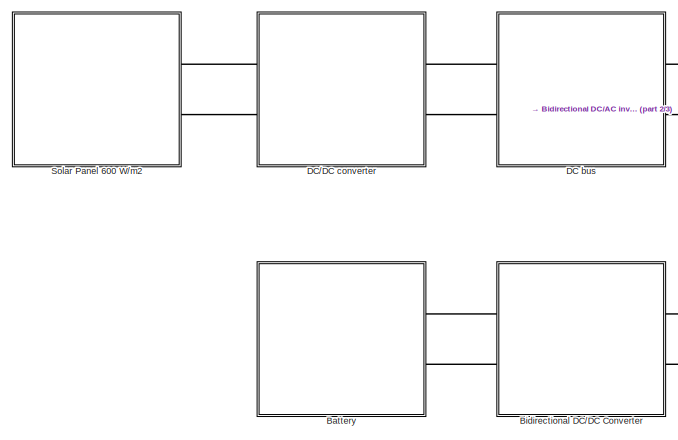
[diagram: root canvas - part 1/3, middle left region]
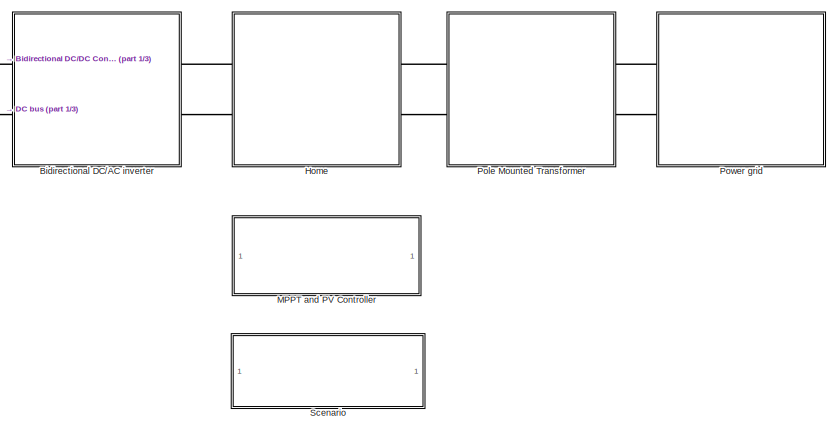
[diagram: root canvas - part 2/3, middle right region]
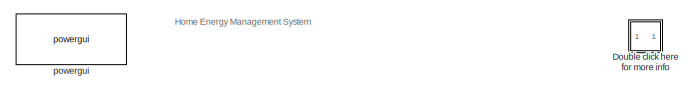
[diagram: root canvas - part 3/3, bottom center region]
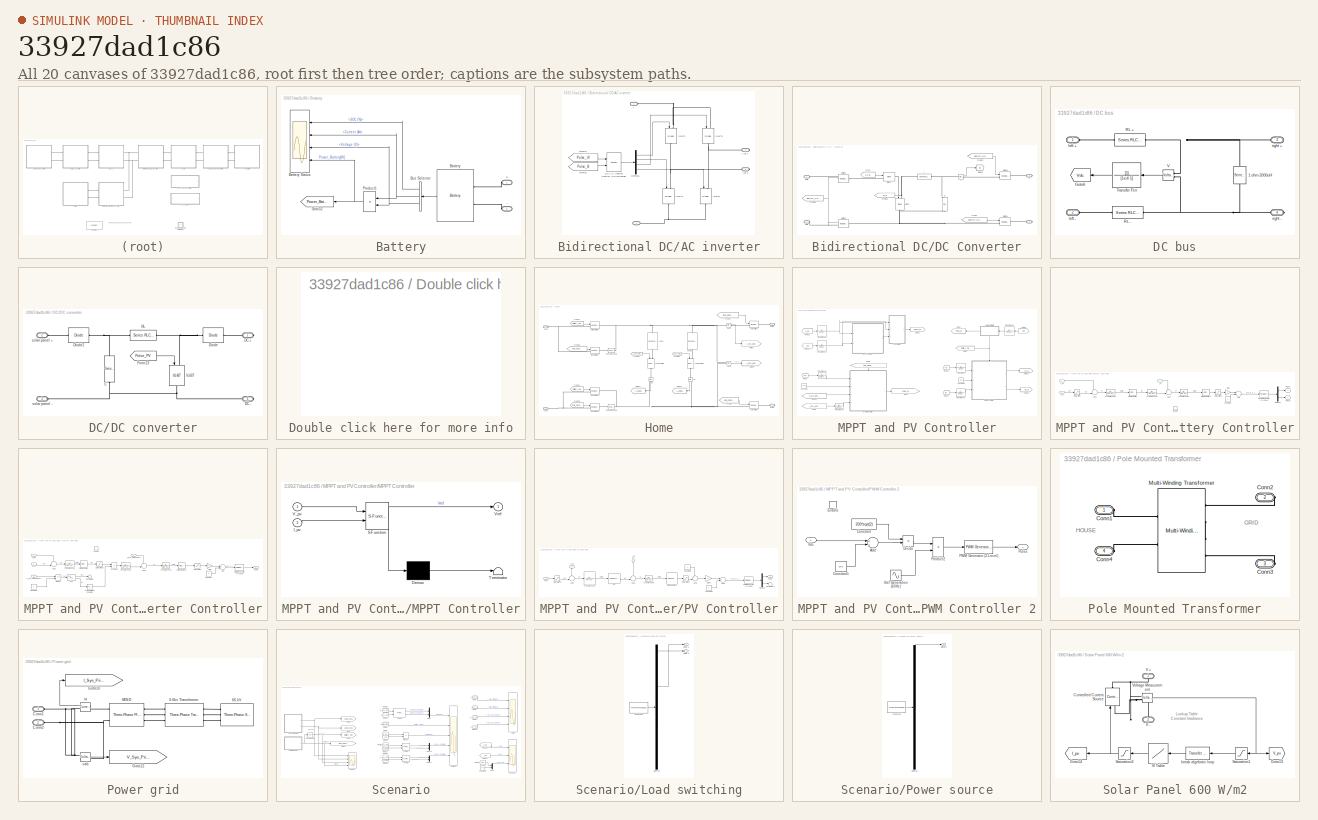
[diagram: thumbnail index - all 20 canvases of the model, root first then tree order]
MODEL slx_33927dad1c86
KIND model
CONFIG AbsTol = auto
CONFIG EnableMultiTasking = on
CONFIG FixedStep = auto
CONFIG MaxStep = auto
CONFIG MinStep = auto
CONFIG PreLoadFcn = % Data of Solar Panel\n%5000[W]/130[W]\n% Total power generated by solar panel reaches 5[KW].\n% each solar panel generates power 130[kW].   \nV = [0    40 80 120 160 180 200 217 240 260 280];\nI = 5000/130*[0.68 0.675 0.67 0.665 0.660 0.655 0.640 0.6 0.48 0.28 0];\n\n%subplot(211);plot(V,I);xlabel('Voltage[V]');ylabel('Current[a]')\n%subplot(212);plot(V.*I);title('Power[W]')\n\n% Sample Time[s]\nTs =5e-6;\n\n...<+606ch>
CONFIG RelTol = 1e-3
CONFIG SampleTimeConstraint = Unconstrained
CONFIG Solver = ode23tb
CONFIG SolverName = ode23tb
CONFIG StartTime = 0.0
CONFIG StopTime = 6
BLOCK [SubSystem] Battery
  Ports = [0, 0, 0, 0, 0, 2]
  RequestExecContextInheritance = off
  Variant = off
BLOCK [PMIOPort] Battery/+
  Port = 1
  Side = Left
BLOCK [PMIOPort] Battery/-
  Port = 2
  Side = Left
BLOCK [Reference] Battery/Battery  REF=electricdrivelib/Extra Sources/Battery
  Ports = [0, 1, 0, 0, 0, 2]
  SourceBlock = electricdrivelib/Extra Sources/Battery
  SourceProductBaseCode = PS
  SourceProductName = Simscape Power Systems
  SourceType = Battery
BLOCK [Scope] Battery/Battery Status
  NumInputPorts = 4
  Ports = [4]
  ScopeSpecificationString = Simulink.scopes.TimeScopeBlockCfg('CurrentConfiguration', extmgr.ConfigurationSet(extmgr.Configuration('Core','General UI',true),extmgr.Configuration('Core','Source UI',true),extmgr.Configuration('Sources','WiredSimulink',true,'DataLoggingVariableName','ScopeData4','DataLoggingSaveFormat','Array','DataLoggingDecimation','1'),extmgr.Configuration('Visuals','Time Domain',true,'SerializedDisplays',{s...<+3470ch>
BLOCK [BusSelector] Battery/Bus Selector
  OutputAsBus = off
  OutputSignals = SOC (%),Current (A),Voltage (V)
  Ports = [1, 3]
BLOCK [Goto] Battery/Goto32
  GotoTag = Power_Battery
  TagVisibility = global
BLOCK [Product] Battery/Product1
  InputSameDT = off
  OutDataTypeStr = Inherit: Inherit via internal rule
  Ports = [2, 1]
  SaturateOnIntegerOverflow = off
BLOCK [SubSystem] Bidirectional DC//AC inverter
  Ports = [0, 0, 0, 0, 0, 2, 2]
  RequestExecContextInheritance = off
  Variant = off
BLOCK [PMIOPort] Bidirectional DC//AC inverter/+
  Port = 1
  Side = Left
BLOCK [PMIOPort] Bidirectional DC//AC inverter/-
  Port = 4
  Side = Left
BLOCK [PMIOPort] Bidirectional DC//AC inverter/Aux 1
  Port = 2
  Side = Right
BLOCK [PMIOPort] Bidirectional DC//AC inverter/Aux 2
  Port = 3
  Side = Right
BLOCK [Merge] Bidirectional DC//AC inverter/DC//AC Inverter Controll Pullse Merge
  Ports = [2, 1]
BLOCK [Demux] Bidirectional DC//AC inverter/Demux1
  DisplayOption = bar
  Ports = [1, 4]
BLOCK [From] Bidirectional DC//AC inverter/From12
  GotoTag = Pulse_UI
  TagVisibility = global
BLOCK [From] Bidirectional DC//AC inverter/From15
  GotoTag = Pulse_B
  TagVisibility = global
BLOCK [Reference] Bidirectional DC//AC inverter/IGBT1  REF=powerlib/Power
Electronics/IGBT//Diode
  Ports = [1, 0, 0, 0, 0, 1, 1]
  SourceBlock = powerlib/Power\nElectronics/IGBT//Diode
  SourceProductBaseCode = PS
  SourceProductName = Simscape Power Systems
  SourceType = IGBT/Diode
BLOCK [Reference] Bidirectional DC//AC inverter/IGBT2  REF=powerlib/Power
Electronics/IGBT//Diode
  Ports = [1, 0, 0, 0, 0, 1, 1]
  SourceBlock = powerlib/Power\nElectronics/IGBT//Diode
  SourceProductBaseCode = PS
  SourceProductName = Simscape Power Systems
  SourceType = IGBT/Diode
BLOCK [Reference] Bidirectional DC//AC inverter/IGBT3  REF=powerlib/Power
Electronics/IGBT//Diode
  Ports = [1, 0, 0, 0, 0, 1, 1]
  SourceBlock = powerlib/Power\nElectronics/IGBT//Diode
  SourceProductBaseCode = PS
  SourceProductName = Simscape Power Systems
  SourceType = IGBT/Diode
BLOCK [Reference] Bidirectional DC//AC inverter/IGBT4  REF=powerlib/Power
Electronics/IGBT//Diode
  Ports = [1, 0, 0, 0, 0, 1, 1]
  SourceBlock = powerlib/Power\nElectronics/IGBT//Diode
  SourceProductBaseCode = PS
  SourceProductName = Simscape Power Systems
  SourceType = IGBT/Diode
BLOCK [SubSystem] Bidirectional DC//DC Converter
  Ports = [0, 0, 0, 0, 0, 2, 2]
  RequestExecContextInheritance = off
  Variant = off
BLOCK [PMIOPort] Bidirectional DC//DC Converter/+
  Port = 3
  Side = Right
BLOCK [PMIOPort] Bidirectional DC//DC Converter/-
  Port = 4
  Side = Right
BLOCK [PMIOPort] Bidirectional DC//DC Converter/Batt +
  Port = 1
  Side = Left
BLOCK [PMIOPort] Bidirectional DC//DC Converter/Batt -
  Port = 2
  Side = Left
BLOCK [Reference] Bidirectional DC//DC Converter/C  REF=powerlib/Elements/Series RLC Branch
  Ports = [0, 0, 0, 0, 0, 1, 1]
  SourceBlock = powerlib/Elements/Series RLC Branch
  SourceProductBaseCode = PS
  SourceProductName = Simscape Power Systems
  SourceType = Series RLC Branch
BLOCK [From] Bidirectional DC//DC Converter/From
  GotoTag = G1_B
  TagVisibility = global
BLOCK [From] Bidirectional DC//DC Converter/From1
  GotoTag = Battery_ON
  TagVisibility = global
BLOCK [From] Bidirectional DC//DC Converter/From20
  GotoTag = Battery_ON
  TagVisibility = global
BLOCK [From] Bidirectional DC//DC Converter/From32
  GotoTag = G2_B
  TagVisibility = global
BLOCK [From] Bidirectional DC//DC Converter/From37
  GotoTag = Battery_ON
  TagVisibility = global
BLOCK [Goto] Bidirectional DC//DC Converter/Goto18
  GotoTag = Ibt
  TagVisibility = global
BLOCK [Reference] Bidirectional DC//DC Converter/IGBT1  REF=powerlib/Power
Electronics/IGBT//Diode
  Ports = [1, 0, 0, 0, 0, 1, 1]
  SourceBlock = powerlib/Power\nElectronics/IGBT//Diode
  SourceProductBaseCode = PS
  SourceProductName = Simscape Power Systems
  SourceType = IGBT/Diode
BLOCK [Reference] Bidirectional DC//DC Converter/IGBT2  REF=powerlib/Power
Electronics/IGBT//Diode
  Ports = [1, 0, 0, 0, 0, 1, 1]
  SourceBlock = powerlib/Power\nElectronics/IGBT//Diode
  SourceProductBaseCode = PS
  SourceProductName = Simscape Power Systems
  SourceType = IGBT/Diode
BLOCK [Reference] Bidirectional DC//DC Converter/L  REF=powerlib/Elements/Series RLC Branch
  Ports = [0, 0, 0, 0, 0, 1, 1]
  SourceBlock = powerlib/Elements/Series RLC Branch
  SourceProductBaseCode = PS
  SourceProductName = Simscape Power Systems
  SourceType = Series RLC Branch
BLOCK [Reference] Bidirectional DC//DC Converter/Switch1  REF=powerlib/Power
Electronics/Ideal Switch
  Ports = [1, 0, 0, 0, 0, 1, 1]
  SourceBlock = powerlib/Power\nElectronics/Ideal Switch
  SourceProductBaseCode = PS
  SourceProductName = Simscape Power Systems
  SourceType = Ideal Switch
BLOCK [Reference] Bidirectional DC//DC Converter/Switch2  REF=powerlib/Power
Electronics/Ideal Switch
  Ports = [1, 0, 0, 0, 0, 1, 1]
  SourceBlock = powerlib/Power\nElectronics/Ideal Switch
  SourceProductBaseCode = PS
  SourceProductName = Simscape Power Systems
  SourceType = Ideal Switch
BLOCK [Reference] Bidirectional DC//DC Converter/Switch3  REF=powerlib/Power
Electronics/Ideal Switch
  Ports = [1, 0, 0, 0, 0, 1, 1]
  SourceBlock = powerlib/Power\nElectronics/Ideal Switch
  SourceProductBaseCode = PS
  SourceProductName = Simscape Power Systems
  SourceType = Ideal Switch
BLOCK [Reference] Bidirectional DC//DC Converter/Switch4  REF=powerlib/Power
Electronics/Ideal Switch
  Ports = [1, 0, 0, 0, 0, 1, 1]
  SourceBlock = powerlib/Power\nElectronics/Ideal Switch
  SourceProductBaseCode = PS
  SourceProductName = Simscape Power Systems
  SourceType = Ideal Switch
BLOCK [Reference] Bidirectional DC//DC Converter/i  REF=powerlib/Measurements/Current Measurement
  Ports = [0, 1, 0, 0, 0, 1, 1]
  SourceBlock = powerlib/Measurements/Current Measurement
  SourceProductBaseCode = PS
  SourceProductName = Simscape Power Systems
  SourceType = Current Measurement
BLOCK [SubSystem] DC bus
  Ports = [0, 0, 0, 0, 0, 2, 2]
  RequestExecContextInheritance = off
  Variant = off
BLOCK [Reference] DC bus/1 ohm 2000uH  REF=powerlib/Elements/Series RLC Branch
  AttributesFormatString = \n
  Ports = [0, 0, 0, 0, 0, 1, 1]
  SourceBlock = powerlib/Elements/Series RLC Branch
  SourceProductBaseCode = PS
  SourceProductName = Simscape Power Systems
  SourceType = Series RLC Branch
BLOCK [Goto] DC bus/Goto6
  GotoTag = Vdc
  TagVisibility = global
BLOCK [Reference] DC bus/RL +  REF=powerlib/Elements/Series RLC Branch
  Ports = [0, 0, 0, 0, 0, 1, 1]
  SourceBlock = powerlib/Elements/Series RLC Branch
  SourceProductBaseCode = PS
  SourceProductName = Simscape Power Systems
  SourceType = Series RLC Branch
BLOCK [Reference] DC bus/RL -  REF=powerlib/Elements/Series RLC Branch
  Ports = [0, 0, 0, 0, 0, 1, 1]
  SourceBlock = powerlib/Elements/Series RLC Branch
  SourceProductBaseCode = PS
  SourceProductName = Simscape Power Systems
  SourceType = Series RLC Branch
BLOCK [TransferFcn] DC bus/Transfer Fcn
  Denominator = [1e-4 1]
BLOCK [Reference] DC bus/V  REF=powerlib/Measurements/Voltage Measurement
  Ports = [0, 1, 0, 0, 0, 2]
  SourceBlock = powerlib/Measurements/Voltage Measurement
  SourceProductBaseCode = PS
  SourceProductName = Simscape Power Systems
  SourceType = Voltage Measurement
BLOCK [PMIOPort] DC bus/left +
  Port = 1
  Side = Left
BLOCK [PMIOPort] DC bus/left -
  Port = 2
  Side = Left
BLOCK [PMIOPort] DC bus/right +
  Port = 3
  Side = Right
BLOCK [PMIOPort] DC bus/right -
  Port = 4
  Side = Right
BLOCK [SubSystem] DC//DC converter
  Ports = [0, 0, 0, 0, 0, 2, 2]
  RequestExecContextInheritance = off
  Variant = off
BLOCK [Reference] DC//DC converter/C  REF=powerlib/Elements/Series RLC Branch
  Ports = [0, 0, 0, 0, 0, 1, 1]
  SourceBlock = powerlib/Elements/Series RLC Branch
  SourceProductBaseCode = PS
  SourceProductName = Simscape Power Systems
  SourceType = Series RLC Branch
BLOCK [PMIOPort] DC//DC converter/DC +
  Port = 1
  Side = Right
BLOCK [PMIOPort] DC//DC converter/DC -
  Port = 4
  Side = Right
BLOCK [Reference] DC//DC converter/Diode  REF=powerlib/Power
Electronics/Diode
  Ports = [0, 0, 0, 0, 0, 1, 1]
  SourceBlock = powerlib/Power\nElectronics/Diode
  SourceProductBaseCode = PS
  SourceProductName = Simscape Power Systems
  SourceType = Diode
BLOCK [Reference] DC//DC converter/Diode2  REF=powerlib/Power
Electronics/Diode
  Ports = [0, 0, 0, 0, 0, 1, 1]
  SourceBlock = powerlib/Power\nElectronics/Diode
  SourceProductBaseCode = PS
  SourceProductName = Simscape Power Systems
  SourceType = Diode
BLOCK [From] DC//DC converter/From13
  GotoTag = Pulse_PV
  TagVisibility = global
BLOCK [Reference] DC//DC converter/IGBT  REF=powerlib/Power
Electronics/IGBT
  Ports = [1, 0, 0, 0, 0, 1, 1]
  SourceBlock = powerlib/Power\nElectronics/IGBT
  SourceProductBaseCode = PS
  SourceProductName = Simscape Power Systems
  SourceType = IGBT
BLOCK [Reference] DC//DC converter/RL  REF=powerlib/Elements/Series RLC Branch
  Ports = [0, 0, 0, 0, 0, 1, 1]
  SourceBlock = powerlib/Elements/Series RLC Branch
  SourceProductBaseCode = PS
  SourceProductName = Simscape Power Systems
  SourceType = Series RLC Branch
BLOCK [PMIOPort] DC//DC converter/solar panel +
  Port = 2
  Side = Left
BLOCK [PMIOPort] DC//DC converter/solar panel -
  Port = 3
  Side = Left
BLOCK [SubSystem] Double click here for more info
  OpenFcn = showdemo(bdroot(gcb))
  Ports = []
  RequestExecContextInheritance = off
  Variant = off
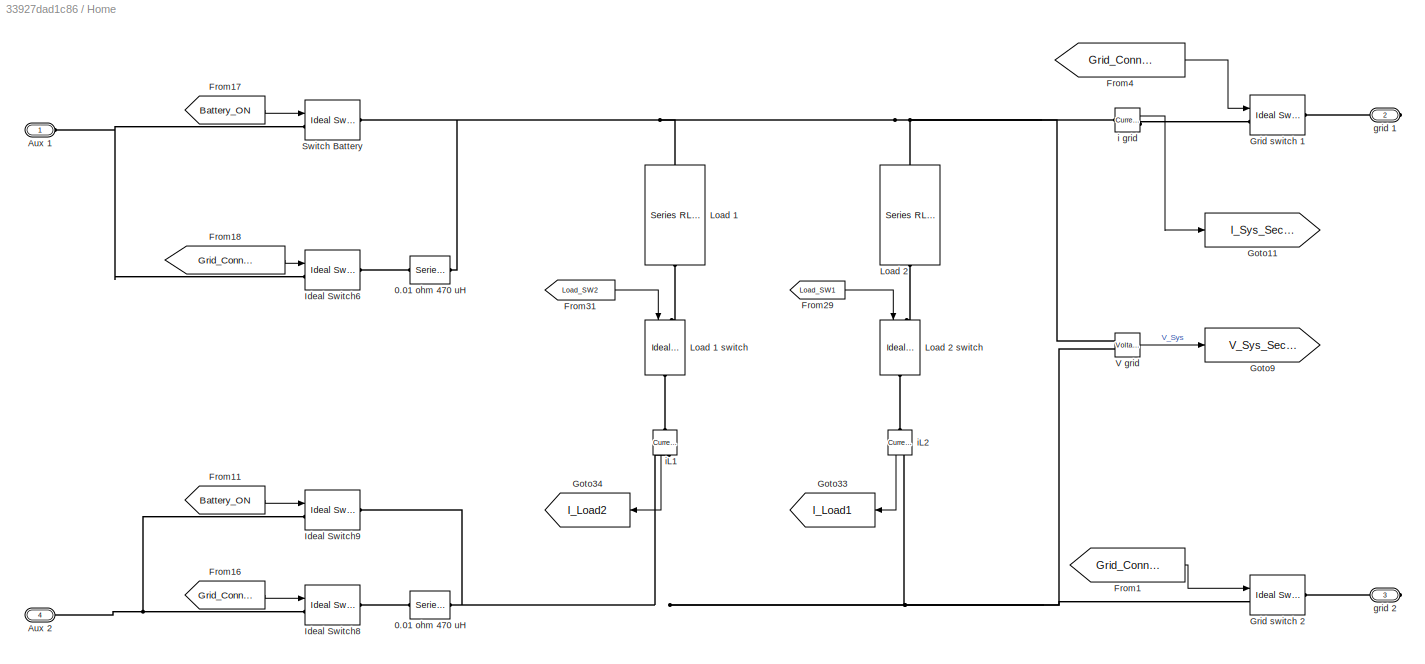
BLOCK [SubSystem] Home
  Ports = [0, 0, 0, 0, 0, 2, 2]
  RequestExecContextInheritance = off
  Variant = off
BLOCK [Reference] Home/0.01 ohm 470 uH  REF=powerlib/Elements/Series RLC Branch
  AttributesFormatString = \n
  Ports = [0, 0, 0, 0, 0, 1, 1]
  SourceBlock = powerlib/Elements/Series RLC Branch
  SourceProductBaseCode = PS
  SourceProductName = Simscape Power Systems
  SourceType = Series RLC Branch
BLOCK [Reference] Home/0.01 ohm 470 uH   REF=powerlib/Elements/Series RLC Branch
  AttributesFormatString = \n
  Ports = [0, 0, 0, 0, 0, 1, 1]
  SourceBlock = powerlib/Elements/Series RLC Branch
  SourceProductBaseCode = PS
  SourceProductName = Simscape Power Systems
  SourceType = Series RLC Branch
BLOCK [PMIOPort] Home/Aux 1
  Port = 1
  Side = Left
BLOCK [PMIOPort] Home/Aux 2
  Port = 4
  Side = Left
BLOCK [From] Home/From1
  GotoTag = Grid_Connection_ON
  TagVisibility = global
BLOCK [From] Home/From11
  GotoTag = Battery_ON
  TagVisibility = global
BLOCK [From] Home/From16
  GotoTag = Grid_Connection_ON
  TagVisibility = global
BLOCK [From] Home/From17
  GotoTag = Battery_ON
  TagVisibility = global
BLOCK [From] Home/From18
  GotoTag = Grid_Connection_ON
  TagVisibility = global
BLOCK [From] Home/From29
  CloseFcn = tagdialog Close
  GotoTag = Load_SW1
  TagVisibility = global
BLOCK [From] Home/From31
  CloseFcn = tagdialog Close
  GotoTag = Load_SW2
  TagVisibility = global
BLOCK [From] Home/From4
  GotoTag = Grid_Connection_ON
  TagVisibility = global
BLOCK [Goto] Home/Goto11
  GotoTag = I_Sys_Secondary
  TagVisibility = global
BLOCK [Goto] Home/Goto33
  GotoTag = I_Load1
  TagVisibility = global
BLOCK [Goto] Home/Goto34
  GotoTag = I_Load2
  TagVisibility = global
BLOCK [Goto] Home/Goto9
  GotoTag = V_Sys_Secondary
  TagVisibility = global
BLOCK [Reference] Home/Grid switch 1  REF=powerlib/Power
Electronics/Ideal Switch
  Ports = [1, 0, 0, 0, 0, 1, 1]
  SourceBlock = powerlib/Power\nElectronics/Ideal Switch
  SourceProductBaseCode = PS
  SourceProductName = Simscape Power Systems
  SourceType = Ideal Switch
BLOCK [Reference] Home/Grid switch 2  REF=powerlib/Power
Electronics/Ideal Switch
  Ports = [1, 0, 0, 0, 0, 1, 1]
  SourceBlock = powerlib/Power\nElectronics/Ideal Switch
  SourceProductBaseCode = PS
  SourceProductName = Simscape Power Systems
  SourceType = Ideal Switch
BLOCK [Reference] Home/Ideal Switch6  REF=powerlib/Power
Electronics/Ideal Switch
  Ports = [1, 0, 0, 0, 0, 1, 1]
  SourceBlock = powerlib/Power\nElectronics/Ideal Switch
  SourceProductBaseCode = PS
  SourceProductName = Simscape Power Systems
  SourceType = Ideal Switch
BLOCK [Reference] Home/Ideal Switch8  REF=powerlib/Power
Electronics/Ideal Switch
  Ports = [1, 0, 0, 0, 0, 1, 1]
  SourceBlock = powerlib/Power\nElectronics/Ideal Switch
  SourceProductBaseCode = PS
  SourceProductName = Simscape Power Systems
  SourceType = Ideal Switch
BLOCK [Reference] Home/Ideal Switch9  REF=powerlib/Power
Electronics/Ideal Switch
  Ports = [1, 0, 0, 0, 0, 1, 1]
  SourceBlock = powerlib/Power\nElectronics/Ideal Switch
  SourceProductBaseCode = PS
  SourceProductName = Simscape Power Systems
  SourceType = Ideal Switch
BLOCK [Reference] Home/Load 1   REF=powerlib/Elements/Series RLC Load
  AttributesFormatString = \n
  Ports = [0, 0, 0, 0, 0, 1, 1]
  SourceBlock = powerlib/Elements/Series RLC Load
  SourceProductBaseCode = PS
  SourceProductName = Simscape Power Systems
  SourceType = Series RLC Load
BLOCK [Reference] Home/Load 1 switch  REF=powerlib/Power
Electronics/Ideal Switch
  Ports = [1, 0, 0, 0, 0, 1, 1]
  SourceBlock = powerlib/Power\nElectronics/Ideal Switch
  SourceProductBaseCode = PS
  SourceProductName = Simscape Power Systems
  SourceType = Ideal Switch
BLOCK [Reference] Home/Load 2  REF=powerlib/Elements/Series RLC Load
  AttributesFormatString = \n
  Ports = [0, 0, 0, 0, 0, 1, 1]
  SourceBlock = powerlib/Elements/Series RLC Load
  SourceProductBaseCode = PS
  SourceProductName = Simscape Power Systems
  SourceType = Series RLC Load
BLOCK [Reference] Home/Load 2 switch  REF=powerlib/Power
Electronics/Ideal Switch
  Ports = [1, 0, 0, 0, 0, 1, 1]
  SourceBlock = powerlib/Power\nElectronics/Ideal Switch
  SourceProductBaseCode = PS
  SourceProductName = Simscape Power Systems
  SourceType = Ideal Switch
BLOCK [Reference] Home/Switch Battery  REF=powerlib/Power
Electronics/Ideal Switch
  Ports = [1, 0, 0, 0, 0, 1, 1]
  SourceBlock = powerlib/Power\nElectronics/Ideal Switch
  SourceProductBaseCode = PS
  SourceProductName = Simscape Power Systems
  SourceType = Ideal Switch
BLOCK [Reference] Home/V grid  REF=powerlib/Measurements/Voltage Measurement
  Ports = [0, 1, 0, 0, 0, 2]
  SourceBlock = powerlib/Measurements/Voltage Measurement
  SourceProductBaseCode = PS
  SourceProductName = Simscape Power Systems
  SourceType = Voltage Measurement
BLOCK [PMIOPort] Home/grid 1
  Port = 2
  Side = Right
BLOCK [PMIOPort] Home/grid 2
  Port = 3
  Side = Right
BLOCK [Reference] Home/i grid  REF=powerlib/Measurements/Current Measurement
  Ports = [0, 1, 0, 0, 0, 1, 1]
  SourceBlock = powerlib/Measurements/Current Measurement
  SourceProductBaseCode = PS
  SourceProductName = Simscape Power Systems
  SourceType = Current Measurement
BLOCK [Reference] Home/iL1  REF=powerlib/Measurements/Current Measurement
  Ports = [0, 1, 0, 0, 0, 1, 1]
  SourceBlock = powerlib/Measurements/Current Measurement
  SourceProductBaseCode = PS
  SourceProductName = Simscape Power Systems
  SourceType = Current Measurement
BLOCK [Reference] Home/iL2  REF=powerlib/Measurements/Current Measurement
  Ports = [0, 1, 0, 0, 0, 1, 1]
  SourceBlock = powerlib/Measurements/Current Measurement
  SourceProductBaseCode = PS
  SourceProductName = Simscape Power Systems
  SourceType = Current Measurement
BLOCK [SubSystem] MPPT and PV Controller
  Ports = []
  RequestExecContextInheritance = off
  Variant = off
BLOCK [SubSystem] MPPT and PV Controller/Battery Controller
  Ports = [3, 2, 1]
  RequestExecContextInheritance = off
  Variant = off
BLOCK [Inport] MPPT and PV Controller/Battery Controller/370
  IconDisplay = Port number
  Port = 2
BLOCK [Sum] MPPT and PV Controller/Battery Controller/Add
  InputSameDT = off
  OutDataTypeStr = Inherit: Inherit via internal rule
  Ports = [2, 1]
  SaturateOnIntegerOverflow = off
BLOCK [Sum] MPPT and PV Controller/Battery Controller/Add1
  IconShape = round
  InputSameDT = off
  Inputs = +-|
  OutDataTypeStr = Inherit: Inherit via internal rule
  Ports = [2, 1]
  SaturateOnIntegerOverflow = off
BLOCK [Sum] MPPT and PV Controller/Battery Controller/Add2
  IconShape = round
  InputSameDT = off
  Inputs = +-|
  OutDataTypeStr = Inherit: Inherit via internal rule
  Ports = [2, 1]
  SaturateOnIntegerOverflow = off
BLOCK [Constant] MPPT and PV Controller/Battery Controller/Constant
  Value = -1
BLOCK [Demux] MPPT and PV Controller/Battery Controller/Demux5
  DisplayOption = bar
  Outputs = 2
  Ports = [1, 2]
BLOCK [EnablePort] MPPT and PV Controller/Battery Controller/Enable
  Ports = []
  StatesWhenEnabling = reset
BLOCK [Gain] MPPT and PV Controller/Battery Controller/Gain
  Gain = 2
  OutDataTypeStr = Inherit: Inherit via internal rule
  ParamDataTypeStr = Inherit: Inherit via internal rule
  SaturateOnIntegerOverflow = off
BLOCK [Inport] MPPT and PV Controller/Battery Controller/I_bt
  IconDisplay = Port number
  Port = 3
BLOCK [Reference] MPPT and PV Controller/Battery Controller/PID Controller  REF=simulink/Continuous/PID Controller
  Ports = [1, 1]
  SourceBlock = simulink/Continuous/PID Controller
  SourceProductBaseCode = SL
  SourceProductName = Simulink
  SourceType = PID 1dof
BLOCK [Reference] MPPT and PV Controller/Battery Controller/PID Controller1  REF=simulink/Continuous/PID Controller
  Ports = [1, 1]
  SourceBlock = simulink/Continuous/PID Controller
  SourceProductBaseCode = SL
  SourceProductName = Simulink
  SourceType = PID 1dof
BLOCK [Reference] MPPT and PV Controller/Battery Controller/PWM Generator (2-Level)  REF=powerlib_meascontrol/Pulse & Signal
Generators/PWM Generator
(2-Level)
  Ports = [1, 1]
  SourceBlock = powerlib_meascontrol/Pulse & Signal\nGenerators/PWM Generator\n(2-Level)
  SourceProductBaseCode = PS
  SourceProductName = Simscape Power Systems
  SourceType = PWM Generator (2-Level)
BLOCK [Outport] MPPT and PV Controller/Battery Controller/Pulse 1
  IconDisplay = Port number
  InitialOutput = 0
  OutputWhenDisabled = reset
BLOCK [Outport] MPPT and PV Controller/Battery Controller/Pulse 2
  IconDisplay = Port number
  InitialOutput = 0
  OutputWhenDisabled = reset
  Port = 2
BLOCK [Saturate] MPPT and PV Controller/Battery Controller/Saturation
  InputPortMap = u0
  LowerLimit = 0
  Ports = [1, 1]
  UpperLimit = 370
BLOCK [Saturate] MPPT and PV Controller/Battery Controller/Saturation1
  InputPortMap = u0
  LowerLimit = 0
  Ports = [1, 1]
  UpperLimit = 1
BLOCK [TransferFcn] MPPT and PV Controller/Battery Controller/Transfer Fcn1
  Denominator = [1e-4 1]
BLOCK [TransferFcn] MPPT and PV Controller/Battery Controller/Transfer Fcn2
  Denominator = [1e-4 1]
BLOCK [TransferFcn] MPPT and PV Controller/Battery Controller/Transfer Fcn3
  Denominator = [1e-4 1]
BLOCK [Inport] MPPT and PV Controller/Battery Controller/V_Dc
  IconDisplay = Port number
BLOCK [Constant] MPPT and PV Controller/Constant1
  Value = 370
BLOCK [Constant] MPPT and PV Controller/Constant3
  Value = 370
BLOCK [From] MPPT and PV Controller/From1
  GotoTag = I_Sys_Secondary
  TagVisibility = global
BLOCK [From] MPPT and PV Controller/From14
  GotoTag = V_Sys_Secondary
  TagVisibility = global
BLOCK [From] MPPT and PV Controller/From19
  GotoTag = I_pv
  TagVisibility = global
BLOCK [From] MPPT and PV Controller/From2
  GotoTag = Vdc
  TagVisibility = global
BLOCK [From] MPPT and PV Controller/From23
  GotoTag = V_pv
  TagVisibility = global
BLOCK [From] MPPT and PV Controller/From3
  GotoTag = Vdc
  TagVisibility = global
BLOCK [From] MPPT and PV Controller/From33
  GotoTag = Vdc
  TagVisibility = global
BLOCK [From] MPPT and PV Controller/From34
  GotoTag = Ibt
  TagVisibility = global
BLOCK [From] MPPT and PV Controller/From5
  GotoTag = Grid_Connection_ON
  TagVisibility = global
BLOCK [From] MPPT and PV Controller/From6
  GotoTag = Battery_ON
  TagVisibility = global
BLOCK [Goto] MPPT and PV Controller/Goto1
  GotoTag = Pulse_UI
  TagVisibility = global
BLOCK [Goto] MPPT and PV Controller/Goto17
  GotoTag = Pulse_PV
  TagVisibility = global
BLOCK [Goto] MPPT and PV Controller/Goto21
  GotoTag = G2_B
  TagVisibility = global
BLOCK [Goto] MPPT and PV Controller/Goto22
  GotoTag = G1_B
  TagVisibility = global
BLOCK [Goto] MPPT and PV Controller/Goto8
  GotoTag = Pulse_B
  TagVisibility = global
BLOCK [SubSystem] MPPT and PV Controller/Inverter Controller
  Ports = [4, 1, 1]
  RequestExecContextInheritance = off
  Variant = off
BLOCK [Inport] MPPT and PV Controller/Inverter Controller/370
  IconDisplay = Port number
  Port = 2
BLOCK [Sum] MPPT and PV Controller/Inverter Controller/Add
  InputSameDT = off
  OutDataTypeStr = Inherit: Inherit via internal rule
  Ports = [2, 1]
  SaturateOnIntegerOverflow = off
BLOCK [Sum] MPPT and PV Controller/Inverter Controller/Add1
  IconShape = round
  InputSameDT = off
  Inputs = +-|
  OutDataTypeStr = Inherit: Inherit via internal rule
  Ports = [2, 1]
  SaturateOnIntegerOverflow = off
BLOCK [Sum] MPPT and PV Controller/Inverter Controller/Add2
  IconShape = round
  InputSameDT = off
  Inputs = +-|
  OutDataTypeStr = Inherit: Inherit via internal rule
  Ports = [2, 1]
  SaturateOnIntegerOverflow = off
BLOCK [Constant] MPPT and PV Controller/Inverter Controller/Constant
  Value = -1
BLOCK [Constant] MPPT and PV Controller/Inverter Controller/Constant4
BLOCK [Product] MPPT and PV Controller/Inverter Controller/Divide1
  InputSameDT = off
  Inputs = */
  OutDataTypeStr = Inherit: Inherit via internal rule
  Ports = [2, 1]
  RndMeth = Floor
  SaturateOnIntegerOverflow = off
BLOCK [EnablePort] MPPT and PV Controller/Inverter Controller/Enable
  Ports = []
  StatesWhenEnabling = reset
BLOCK [Gain] MPPT and PV Controller/Inverter Controller/Gain
  Gain = 2
  OutDataTypeStr = Inherit: Inherit via internal rule
  ParamDataTypeStr = Inherit: Inherit via internal rule
  SaturateOnIntegerOverflow = off
BLOCK [Inport] MPPT and PV Controller/Inverter Controller/I_Sys_Secondary
  IconDisplay = Port number
  Port = 4
BLOCK [Reference] MPPT and PV Controller/Inverter Controller/PID Controller  REF=simulink/Continuous/PID Controller
  Ports = [1, 1]
  SourceBlock = simulink/Continuous/PID Controller
  SourceProductBaseCode = SL
  SourceProductName = Simulink
  SourceType = PID 1dof
BLOCK [Reference] MPPT and PV Controller/Inverter Controller/PID Controller1  REF=simulink/Continuous/PID Controller
  Ports = [1, 1]
  SourceBlock = simulink/Continuous/PID Controller
  SourceProductBaseCode = SL
  SourceProductName = Simulink
  SourceType = PID 1dof
BLOCK [Reference] MPPT and PV Controller/Inverter Controller/PLL  REF=powerlib_meascontrol/PLL/PLL
  Ports = [1, 2]
  SourceBlock = powerlib_meascontrol/PLL/PLL
  SourceProductBaseCode = PS
  SourceProductName = Simscape Power Systems
  SourceType = PLL
BLOCK [Reference] MPPT and PV Controller/Inverter Controller/PWM Generator (2-Level)  REF=powerlib_meascontrol/Pulse & Signal
Generators/PWM Generator
(2-Level)
  Ports = [1, 1]
  SourceBlock = powerlib_meascontrol/Pulse & Signal\nGenerators/PWM Generator\n(2-Level)
  SourceProductBaseCode = PS
  SourceProductName = Simscape Power Systems
  SourceType = PWM Generator (2-Level)
BLOCK [Product] MPPT and PV Controller/Inverter Controller/Product1
  InputSameDT = off
  OutDataTypeStr = Inherit: Inherit via internal rule
  Ports = [2, 1]
  SaturateOnIntegerOverflow = off
BLOCK [Outport] MPPT and PV Controller/Inverter Controller/Pulse
  IconDisplay = Port number
  InitialOutput = [0 0 0 0]
  OutputWhenDisabled = reset
BLOCK [Saturate] MPPT and PV Controller/Inverter Controller/Saturation1
  InputPortMap = u0
  LowerLimit = -1
  Ports = [1, 1]
  UpperLimit = 1
BLOCK [Saturate] MPPT and PV Controller/Inverter Controller/Saturation3
  InputPortMap = u0
  LowerLimit = -50
  Ports = [1, 1]
  UpperLimit = 50
BLOCK [Terminator] MPPT and PV Controller/Inverter Controller/Terminator
BLOCK [TransferFcn] MPPT and PV Controller/Inverter Controller/Transfer Fcn1
  Denominator = [1e-4 1]
BLOCK [TransferFcn] MPPT and PV Controller/Inverter Controller/Transfer Fcn2
  Denominator = [1e-4 1]
BLOCK [TransferFcn] MPPT and PV Controller/Inverter Controller/Transfer Fcn3
  Denominator = [1e-4 1]
BLOCK [Trigonometry] MPPT and PV Controller/Inverter Controller/Trigonometric Function
  Ports = [1, 1]
BLOCK [Inport] MPPT and PV Controller/Inverter Controller/V_Dc
  IconDisplay = Port number
BLOCK [Inport] MPPT and PV Controller/Inverter Controller/V_Sys_Secondary
  IconDisplay = Port number
  Port = 3
BLOCK [SubSystem] MPPT and PV Controller/MPPT Controller
  ErrorFcn = Stateflow.Translate.translate
  PermitHierarchicalResolution = ExplicitOnly
  Ports = [2, 1]
  RequestExecContextInheritance = off
  SFBlockType = Chart
  TreatAsAtomicUnit = on
  Variant = off
BLOCK [Demux] MPPT and PV Controller/MPPT Controller/ Demux 
  Outputs = 1
  Ports = [1, 1]
BLOCK [S-Function] MPPT and PV Controller/MPPT Controller/ SFunction 
  EnableBusSupport = off
  FunctionName = sf_sfun
  Parameters = dV
  PortCounts = [2 2]
  Ports = [2, 2]
  SFcnIsStateOwnerBlock = off
  SFunctionDeploymentMode = off
  Tag = Stateflow S-Function power_HEMS 1
BLOCK [Terminator] MPPT and PV Controller/MPPT Controller/ Terminator 
BLOCK [Inport] MPPT and PV Controller/MPPT Controller/I_pv
  IconDisplay = Port number
  Port = 2
BLOCK [Inport] MPPT and PV Controller/MPPT Controller/V_pv
  IconDisplay = Port number
BLOCK [Outport] MPPT and PV Controller/MPPT Controller/Vref
  IconDisplay = Port number
BLOCK [SubSystem] MPPT and PV Controller/PV Controller
  Ports = [3, 1]
  RequestExecContextInheritance = off
  Variant = off
BLOCK [Sum] MPPT and PV Controller/PV Controller/Add3
  InputSameDT = off
  OutDataTypeStr = Inherit: Inherit via internal rule
  Ports = [2, 1]
  SaturateOnIntegerOverflow = off
BLOCK [Sum] MPPT and PV Controller/PV Controller/Add4
  IconShape = round
  InputSameDT = off
  Inputs = +-|
  OutDataTypeStr = Inherit: Inherit via internal rule
  Ports = [2, 1]
  SaturateOnIntegerOverflow = off
BLOCK [Sum] MPPT and PV Controller/PV Controller/Add5
  IconShape = round
  InputSameDT = off
  Inputs = +-|
  OutDataTypeStr = Inherit: Inherit via internal rule
  Ports = [2, 1]
  SaturateOnIntegerOverflow = off
BLOCK [Sum] MPPT and PV Controller/PV Controller/Add6
  IconShape = round
  InputSameDT = off
  Inputs = +-|
  OutDataTypeStr = Inherit: Inherit via internal rule
  Ports = [2, 1]
  SaturateOnIntegerOverflow = off
BLOCK [Constant] MPPT and PV Controller/PV Controller/Constant3
  Value = -1
BLOCK [Constant] MPPT and PV Controller/PV Controller/Constant5
BLOCK [Demux] MPPT and PV Controller/PV Controller/Demux2
  DisplayOption = bar
  Outputs = 2
  Ports = [1, 2]
BLOCK [Gain] MPPT and PV Controller/PV Controller/Gain2
  Gain = 2
  OutDataTypeStr = Inherit: Inherit via internal rule
  ParamDataTypeStr = Inherit: Inherit via internal rule
  SaturateOnIntegerOverflow = off
BLOCK [Inport] MPPT and PV Controller/PV Controller/I_pv
  IconDisplay = Port number
  Port = 2
BLOCK [Reference] MPPT and PV Controller/PV Controller/PID  REF=simulink/Continuous/PID Controller
  Ports = [1, 1]
  SourceBlock = simulink/Continuous/PID Controller
  SourceProductBaseCode = SL
  SourceProductName = Simulink
  SourceType = PID 1dof
BLOCK [Reference] MPPT and PV Controller/PV Controller/PID Controller3  REF=simulink/Continuous/PID Controller
  Ports = [1, 1]
  SourceBlock = simulink/Continuous/PID Controller
  SourceProductBaseCode = SL
  SourceProductName = Simulink
  SourceType = PID 1dof
BLOCK [Reference] MPPT and PV Controller/PV Controller/PWM Generator (2-Level)  REF=powerlib_meascontrol/Pulse & Signal
Generators/PWM Generator
(2-Level)
  Ports = [1, 1]
  SourceBlock = powerlib_meascontrol/Pulse & Signal\nGenerators/PWM Generator\n(2-Level)
  SourceProductBaseCode = PS
  SourceProductName = Simscape Power Systems
  SourceType = PWM Generator (2-Level)
BLOCK [Outport] MPPT and PV Controller/PV Controller/Pulse
  IconDisplay = Port number
BLOCK [Saturate] MPPT and PV Controller/PV Controller/Saturation2
  InputPortMap = u0
  LowerLimit = 0
  Ports = [1, 1]
  UpperLimit = 280
BLOCK [Saturate] MPPT and PV Controller/PV Controller/Saturation3
  InputPortMap = u0
  LowerLimit = 0
  Ports = [1, 1]
  UpperLimit = 1
BLOCK [Terminator] MPPT and PV Controller/PV Controller/Terminator1
BLOCK [TransferFcn] MPPT and PV Controller/PV Controller/Transfer Fcn5
  Denominator = [1e-4 1]
BLOCK [TransferFcn] MPPT and PV Controller/PV Controller/Transfer Fcn6
  Denominator = [1e-4 1]
BLOCK [Inport] MPPT and PV Controller/PV Controller/V_pv
  IconDisplay = Port number
BLOCK [Inport] MPPT and PV Controller/PV Controller/Vref
  IconDisplay = Port number
  Port = 3
BLOCK [SubSystem] MPPT and PV Controller/PWM Controller 2
  Ports = [1, 1, 1]
  RequestExecContextInheritance = off
  Variant = off
BLOCK [Sum] MPPT and PV Controller/PWM Controller 2/Add
  InputSameDT = off
  OutDataTypeStr = Inherit: Inherit via internal rule
  Ports = [2, 1]
  SaturateOnIntegerOverflow = off
BLOCK [Constant] MPPT and PV Controller/PWM Controller 2/Constant
  Value = 200*sqrt(2)
BLOCK [Constant] MPPT and PV Controller/PWM Controller 2/Constant1
  Value = 1e-6
BLOCK [Product] MPPT and PV Controller/PWM Controller 2/Divide
  InputSameDT = off
  Inputs = */
  OutDataTypeStr = Inherit: Inherit via internal rule
  Ports = [2, 1]
  RndMeth = Floor
  SaturateOnIntegerOverflow = off
BLOCK [EnablePort] MPPT and PV Controller/PWM Controller 2/Enable
  Ports = []
  StatesWhenEnabling = reset
BLOCK [Reference] MPPT and PV Controller/PWM Controller 2/PWM Generator (2-Level)  REF=powerlib_meascontrol/Pulse & Signal
Generators/PWM Generator
(2-Level)
  Ports = [1, 1]
  SourceBlock = powerlib_meascontrol/Pulse & Signal\nGenerators/PWM Generator\n(2-Level)
  SourceProductBaseCode = PS
  SourceProductName = Simscape Power Systems
  SourceType = PWM Generator (2-Level)
BLOCK [Product] MPPT and PV Controller/PWM Controller 2/Product2
  InputSameDT = off
  OutDataTypeStr = Inherit: Inherit via internal rule
  Ports = [2, 1]
  SampleTime = 5e-6
  SaturateOnIntegerOverflow = off
BLOCK [Outport] MPPT and PV Controller/PWM Controller 2/Pulse
  IconDisplay = Port number
  InitialOutput = [0 0 0 0]
  OutputWhenDisabled = reset
BLOCK [Sin] MPPT and PV Controller/PWM Controller 2/Uref Generation (60Hz)
  Frequency = 2*pi*60
  Ports = [0, 1]
  SampleTime = 5e-6
BLOCK [Inport] MPPT and PV Controller/PWM Controller 2/Vdc
  IconDisplay = Port number
BLOCK [TransferFcn] MPPT and PV Controller/Transfer Fcn
  Denominator = [1e-2 1]
BLOCK [TransferFcn] MPPT and PV Controller/Transfer Fcn1
  Denominator = [1e-5 1]
BLOCK [TransferFcn] MPPT and PV Controller/Transfer Fcn2
  Denominator = [1e-5 1]
BLOCK [TransferFcn] MPPT and PV Controller/Transfer Fcn3
  Denominator = [0.01 1]
BLOCK [TransferFcn] MPPT and PV Controller/Transfer Fcn5
  Denominator = [1e-5 1]
BLOCK [TransferFcn] MPPT and PV Controller/Transfer Fcn6
  Denominator = [1e-5 1]
BLOCK [TransferFcn] MPPT and PV Controller/Transfer Fcn8
  Denominator = [1e-5 1]
BLOCK [SubSystem] Pole Mounted Transformer
  Ports = [0, 0, 0, 0, 0, 2, 2]
  RequestExecContextInheritance = off
  Variant = off
BLOCK [PMIOPort] Pole Mounted Transformer/Conn1
  Port = 1
  Side = Left
BLOCK [PMIOPort] Pole Mounted Transformer/Conn2
  Port = 2
  Side = Right
BLOCK [PMIOPort] Pole Mounted Transformer/Conn3
  Port = 3
  Side = Right
BLOCK [PMIOPort] Pole Mounted Transformer/Conn4
  Port = 4
  Side = Left
BLOCK [Reference] Pole Mounted Transformer/Multi-Winding Transformer  REF=powerlib/Elements/Multi-Winding
Transformer
  Ports = [0, 0, 0, 0, 0, 2, 4]
  SourceBlock = powerlib/Elements/Multi-Winding\nTransformer
  SourceProductBaseCode = PS
  SourceProductName = Simscape Power Systems
  SourceType = Multi-Winding Transformer
BLOCK [SubSystem] Power grid
  Ports = [0, 0, 0, 0, 0, 2]
  RequestExecContextInheritance = off
  Variant = off
BLOCK [Reference] Power grid/6.6kv Transformer  REF=powerlib/Elements/Three-Phase
Transformer
(Two Windings)
  Ports = [0, 0, 0, 0, 0, 3, 3]
  SourceBlock = powerlib/Elements/Three-Phase\nTransformer\n(Two Windings)
  SourceProductBaseCode = PS
  SourceProductName = Simscape Power Systems
  SourceType = Three-Phase Transformer (Two Windings)
BLOCK [Reference] Power grid/66 kV  REF=powerlib/Electrical
Sources/Three-Phase Source
  Ports = [0, 0, 0, 0, 0, 0, 3]
  SourceBlock = powerlib/Electrical\nSources/Three-Phase Source
  SourceProductBaseCode = PS
  SourceProductName = Simscape Power Systems
  SourceType = Three-Phase Source
BLOCK [PMIOPort] Power grid/Conn1
  Port = 1
  Side = Left
BLOCK [PMIOPort] Power grid/Conn2
  Port = 2
  Side = Left
BLOCK [Goto] Power grid/Goto10
  GotoTag = I_Sys_Primary
  TagVisibility = global
BLOCK [Goto] Power grid/Goto12
  GotoTag = V_Sys_Primary
  TagVisibility = global
BLOCK [Reference] Power grid/SEND  REF=powerlib/Elements/Three-Phase
PI Section Line
  AttributesFormatString = \n
  Ports = [0, 0, 0, 0, 0, 3, 3]
  SourceBlock = powerlib/Elements/Three-Phase\nPI Section Line
  SourceProductBaseCode = PS
  SourceProductName = Simscape Power Systems
  SourceType = Three-Phase PI Section Line
BLOCK [Reference] Power grid/ia  REF=powerlib/Measurements/Current Measurement
  Ports = [0, 1, 0, 0, 0, 1, 1]
  SourceBlock = powerlib/Measurements/Current Measurement
  SourceProductBaseCode = PS
  SourceProductName = Simscape Power Systems
  SourceType = Current Measurement
BLOCK [Reference] Power grid/vab  REF=powerlib/Measurements/Voltage Measurement
  Ports = [0, 1, 0, 0, 0, 2]
  SourceBlock = powerlib/Measurements/Voltage Measurement
  SourceProductBaseCode = PS
  SourceProductName = Simscape Power Systems
  SourceType = Voltage Measurement
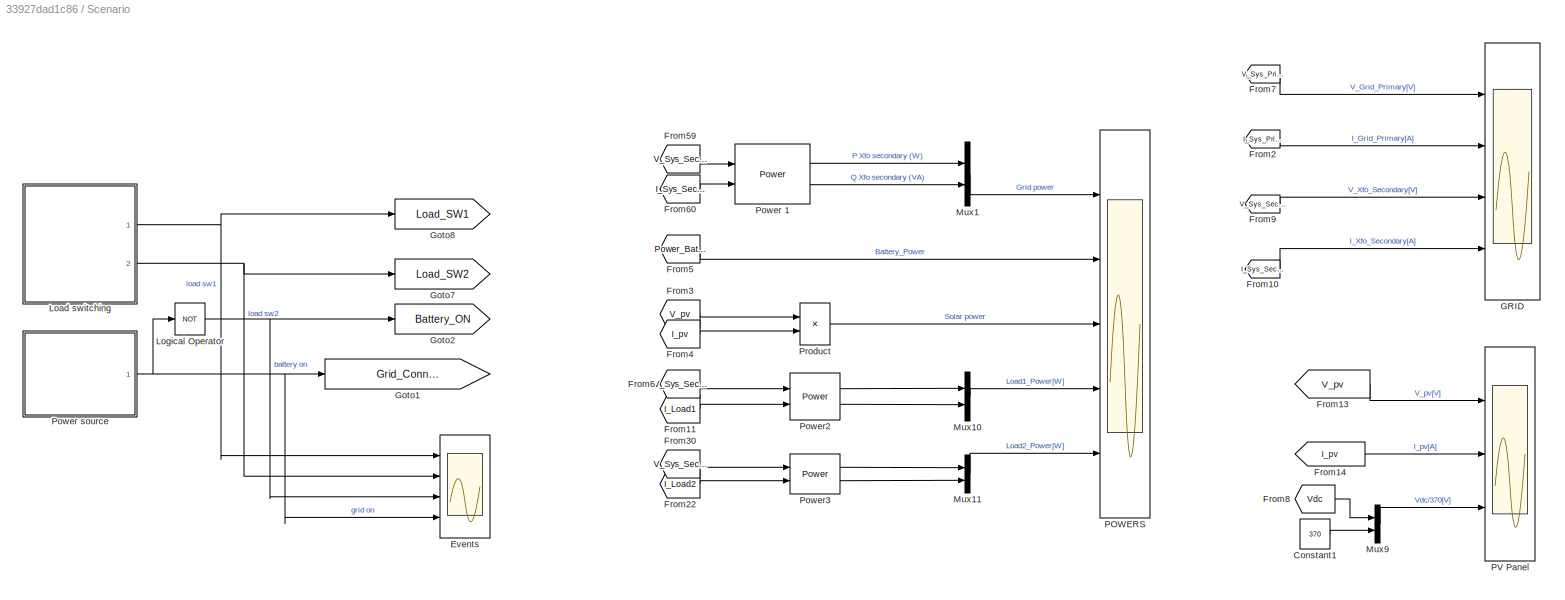
BLOCK [SubSystem] Scenario
  Ports = []
  RequestExecContextInheritance = off
  Variant = off
BLOCK [Constant] Scenario/Constant1
  Value = 370
BLOCK [Scope] Scenario/Events
  NumInputPorts = 4
  Ports = [4]
  ScopeSpecificationString = Simulink.scopes.TimeScopeBlockCfg('CurrentConfiguration', extmgr.ConfigurationSet(extmgr.Configuration('Core','General UI',true),extmgr.Configuration('Core','Source UI',true),extmgr.Configuration('Sources','WiredSimulink',true,'DataLoggingVariableName','ScopeData1'),extmgr.Configuration('Visuals','Time Domain',true,'SerializedDisplays',{struct('MinYLimReal','-0.125','MaxYLimReal','1.125','YLabelRe...<+3435ch>
BLOCK [From] Scenario/From10
  CloseFcn = tagdialog Close
  GotoTag = I_Sys_Secondary
  TagVisibility = global
BLOCK [From] Scenario/From11
  GotoTag = I_Load1
  TagVisibility = global
BLOCK [From] Scenario/From13
  GotoTag = V_pv
  TagVisibility = global
BLOCK [From] Scenario/From14
  GotoTag = I_pv
  TagVisibility = global
BLOCK [From] Scenario/From2
  CloseFcn = tagdialog Close
  GotoTag = I_Sys_Primary
  TagVisibility = global
BLOCK [From] Scenario/From22
  GotoTag = I_Load2
  TagVisibility = global
BLOCK [From] Scenario/From3
  GotoTag = V_pv
  TagVisibility = global
BLOCK [From] Scenario/From30
  CloseFcn = tagdialog Close
  GotoTag = V_Sys_Secondary
  TagVisibility = global
BLOCK [From] Scenario/From4
  GotoTag = I_pv
  TagVisibility = global
BLOCK [From] Scenario/From5
  GotoTag = Power_Battery
  TagVisibility = global
BLOCK [From] Scenario/From59
  CloseFcn = tagdialog Close
  GotoTag = V_Sys_Secondary
  TagVisibility = global
BLOCK [From] Scenario/From6
  CloseFcn = tagdialog Close
  GotoTag = V_Sys_Secondary
  TagVisibility = global
BLOCK [From] Scenario/From60
  CloseFcn = tagdialog Close
  GotoTag = I_Sys_Secondary
  TagVisibility = global
BLOCK [From] Scenario/From7
  CloseFcn = tagdialog Close
  GotoTag = V_Sys_Primary
  TagVisibility = global
BLOCK [From] Scenario/From8
  GotoTag = Vdc
  TagVisibility = global
BLOCK [From] Scenario/From9
  CloseFcn = tagdialog Close
  GotoTag = V_Sys_Secondary
  TagVisibility = global
BLOCK [Scope] Scenario/GRID
  NumInputPorts = 4
  Ports = [4]
  ScopeSpecificationString = Simulink.scopes.TimeScopeBlockCfg('CurrentConfiguration', extmgr.ConfigurationSet(extmgr.Configuration('Core','General UI',true),extmgr.Configuration('Core','Source UI',true),extmgr.Configuration('Sources','WiredSimulink',true,'DataLoggingVariableName','ScopeData1','DataLoggingSaveFormat','StructureWithTime','DataLoggingDecimation','10','DataLoggingDecimateData',true),extmgr.Configuration('Visuals...<+3750ch>
BLOCK [Goto] Scenario/Goto1
  GotoTag = Grid_Connection_ON
  TagVisibility = global
BLOCK [Goto] Scenario/Goto2
  GotoTag = Battery_ON
  TagVisibility = global
BLOCK [Goto] Scenario/Goto7
  GotoTag = Load_SW2
  TagVisibility = global
BLOCK [Goto] Scenario/Goto8
  GotoTag = Load_SW1
  TagVisibility = global
BLOCK [SubSystem] Scenario/Load switching
  ClipboardFcn = sigbuilder_block('clipboard');
  CloseFcn = sigbuilder_block('close');
  ContinueFcn = sigbuilder_block('continue');
  CopyFcn = sigbuilder_block('copy');
  DeleteFcn = sigbuilder_block('delete');
  LoadFcn = sigbuilder_block('load');
  MaskHideContents = on
  ModelCloseFcn = sigbuilder_block('modelClose');
  NameChangeFcn = sigbuilder_block('namechange');
  OpenFcn = sigbuilder_block('open',[57 105.75 1180.5 663.75 ]);
  PauseFcn = sigbuilder_block('pause');
  Ports = [0, 2]
  PreSaveFcn = sigbuilder_block('preSave');
  RequestExecContextInheritance = off
  StartFcn = sigbuilder_block('start');
  StopFcn = sigbuilder_block('stop');
  Tag = STV Subsys
  Variant = off
BLOCK [Demux] Scenario/Load switching/Demux
  Outputs = 2
  Ports = [1, 2]
  Tag = STV Demux
BLOCK [FromWorkspace] Scenario/Load switching/FromWs
  SampleTime = 0
  Tag = STV FromWs
  VariableName = tuvar
  ZeroCross = on
BLOCK [Outport] Scenario/Load switching/Load 1
  IconDisplay = Port number
  Tag = STV Outport
BLOCK [Outport] Scenario/Load switching/Load 2
  IconDisplay = Port number
  Port = 2
  Tag = STV Outport
BLOCK [Logic] Scenario/Logical Operator
  AllPortsSameDT = off
  Operator = NOT
  OutDataTypeStr = boolean
  Ports = [1, 1]
BLOCK [Mux] Scenario/Mux1
  DisplayOption = bar
  Inputs = 2
  Ports = [2, 1]
BLOCK [Mux] Scenario/Mux10
  DisplayOption = bar
  Inputs = 2
  Ports = [2, 1]
BLOCK [Mux] Scenario/Mux11
  DisplayOption = bar
  Inputs = 2
  Ports = [2, 1]
BLOCK [Mux] Scenario/Mux9
  DisplayOption = bar
  Inputs = 2
  Ports = [2, 1]
BLOCK [Scope] Scenario/POWERS
  NumInputPorts = 5
  Ports = [5]
  ScopeSpecificationString = Simulink.scopes.TimeScopeBlockCfg('CurrentConfiguration', extmgr.ConfigurationSet(extmgr.Configuration('Core','General UI',true),extmgr.Configuration('Core','Source UI',true),extmgr.Configuration('Sources','WiredSimulink',true,'DataLoggingVariableName','ScopeData3','DataLoggingSaveFormat','StructureWithTime','DataLoggingDecimation','10','DataLoggingDecimateData',true),extmgr.Configuration('Visuals...<+5244ch>
BLOCK [Scope] Scenario/PV Panel
  NumInputPorts = 3
  Ports = [3]
  ScopeSpecificationString = Simulink.scopes.TimeScopeBlockCfg('CurrentConfiguration', extmgr.ConfigurationSet(extmgr.Configuration('Core','General UI',true),extmgr.Configuration('Core','Source UI',true),extmgr.Configuration('Sources','WiredSimulink',true,'DataLoggingVariableName','ScopeData2','DataLoggingSaveFormat','StructureWithTime','DataLoggingDecimation','10','DataLoggingDecimateData',true),extmgr.Configuration('Visuals...<+3046ch>
BLOCK [Reference] Scenario/Power 1  REF=powerlib_meascontrol/Measurements/Power
  Ports = [2, 2]
  SourceBlock = powerlib_meascontrol/Measurements/Power
  SourceProductBaseCode = PS
  SourceProductName = Simscape Power Systems
  SourceType = Power
BLOCK [SubSystem] Scenario/Power source
  ClipboardFcn = sigbuilder_block('clipboard');
  CloseFcn = sigbuilder_block('close');
  ContinueFcn = sigbuilder_block('continue');
  CopyFcn = sigbuilder_block('copy');
  DeleteFcn = sigbuilder_block('delete');
  LoadFcn = sigbuilder_block('load');
  MaskHideContents = on
  ModelCloseFcn = sigbuilder_block('modelClose');
  NameChangeFcn = sigbuilder_block('namechange');
  OpenFcn = sigbuilder_block('open',[436.966 199.241 549.931 400.345 ]);
  PauseFcn = sigbuilder_block('pause');
  Ports = [0, 1]
  PreSaveFcn = sigbuilder_block('preSave');
  RequestExecContextInheritance = off
  StartFcn = sigbuilder_block('start');
  StopFcn = sigbuilder_block('stop');
  Tag = STV Subsys
  Variant = off
BLOCK [Demux] Scenario/Power source/Demux
  Outputs = 1
  Ports = [1, 1]
  Tag = STV Demux
BLOCK [FromWorkspace] Scenario/Power source/FromWs
  SampleTime = 0
  Tag = STV FromWs
  VariableName = tuvar
  ZeroCross = on
BLOCK [Outport] Scenario/Power source/Signal 2
  IconDisplay = Port number
  Tag = STV Outport
BLOCK [Reference] Scenario/Power2  REF=powerlib_meascontrol/Measurements/Power
  Ports = [2, 2]
  SourceBlock = powerlib_meascontrol/Measurements/Power
  SourceProductBaseCode = PS
  SourceProductName = Simscape Power Systems
  SourceType = Power
BLOCK [Reference] Scenario/Power3  REF=powerlib_meascontrol/Measurements/Power
  Ports = [2, 2]
  SourceBlock = powerlib_meascontrol/Measurements/Power
  SourceProductBaseCode = PS
  SourceProductName = Simscape Power Systems
  SourceType = Power
BLOCK [Product] Scenario/Product
  InputSameDT = off
  OutDataTypeStr = Inherit: Inherit via internal rule
  Ports = [2, 1]
  SaturateOnIntegerOverflow = off
BLOCK [SubSystem] Solar Panel 600 W//m2
  Ports = [0, 0, 0, 0, 0, 0, 2]
  RequestExecContextInheritance = off
  Variant = off
BLOCK [Reference] Solar Panel 600 W//m2/Controlled Current Source  REF=powerlib/Electrical
Sources/Controlled Current Source
  Ports = [1, 0, 0, 0, 0, 1, 1]
  SourceBlock = powerlib/Electrical\nSources/Controlled Current Source
  SourceProductBaseCode = PS
  SourceProductName = Simscape Power Systems
  SourceType = Controlled Current Source
BLOCK [Goto] Solar Panel 600 W//m2/Goto13
  GotoTag = V_pv
  TagVisibility = global
BLOCK [Goto] Solar Panel 600 W//m2/Goto14
  GotoTag = I_pv
  TagVisibility = global
BLOCK [Saturate] Solar Panel 600 W//m2/Saturation1
  InputPortMap = u0
  LowerLimit = 10
  Ports = [1, 1]
  UpperLimit = 100
BLOCK [Saturate] Solar Panel 600 W//m2/Saturation2
  InputPortMap = u0
  LowerLimit = 10
  Ports = [1, 1]
  UpperLimit = 100
BLOCK [PMIOPort] Solar Panel 600 W//m2/V +
  Port = 1
  Side = Right
BLOCK [PMIOPort] Solar Panel 600 W//m2/V -
  Port = 2
  Side = Right
BLOCK [Lookup] Solar Panel 600 W//m2/VI Table
  InputValues = V
  SaturateOnIntegerOverflow = off
  Table = I
BLOCK [Reference] Solar Panel 600 W//m2/Voltage Measurement  REF=powerlib/Measurements/Voltage Measurement
  Ports = [0, 1, 0, 0, 0, 2]
  SourceBlock = powerlib/Measurements/Voltage Measurement
  SourceProductBaseCode = PS
  SourceProductName = Simscape Power Systems
  SourceType = Voltage Measurement
BLOCK [Reference] Solar Panel 600 W//m2/break algebraic loop  REF=simulink_extras/Additional
Linear/Transfer Fcn
(with initial outputs)
  Ports = [1, 1]
  SourceBlock = simulink_extras/Additional\nLinear/Transfer Fcn\n(with initial outputs)
  SourceProductBaseCode = SL
  SourceProductName = Simulink
  SourceType = Transfer Function with Initial Outputs
BLOCK [Reference] powergui  REF=powerlib/powergui
  Ports = []
  Priority = 1
  SourceBlock = powerlib/powergui
  SourceProductBaseCode = PS
  SourceProductName = Simscape Power Systems
  SourceType = PSB option menu block
ANNOTATION (root): Home Energy Management System
ANNOTATION Pole Mounted Transformer: GRID
ANNOTATION Pole Mounted Transformer: HOUSE
ANNOTATION Solar Panel 600 W//m2: Lookup Table Constant Irradiance
LINE Battery/Battery:1 -> Battery/Bus Selector:1
LINE Battery/Bus Selector:1 -> Battery/Battery Status:1
NET Battery/Bus Selector:2 -> Battery/Battery Status:2, Battery/Product1:1
NET Battery/Bus Selector:3 -> Battery/Battery Status:3, Battery/Product1:2
NET Battery/Product1:1 -> Battery/Battery Status:4, Battery/Goto32:1
LINE Bidirectional DC//AC inverter/DC//AC Inverter Controll Pullse Merge:1 -> Bidirectional DC//AC inverter/Demux1:1
LINE Bidirectional DC//AC inverter/Demux1:1 -> Bidirectional DC//AC inverter/IGBT1:1
LINE Bidirectional DC//AC inverter/Demux1:2 -> Bidirectional DC//AC inverter/IGBT2:1
LINE Bidirectional DC//AC inverter/Demux1:3 -> Bidirectional DC//AC inverter/IGBT3:1
LINE Bidirectional DC//AC inverter/Demux1:4 -> Bidirectional DC//AC inverter/IGBT4:1
LINE Bidirectional DC//AC inverter/From12:1 -> Bidirectional DC//AC inverter/DC//AC Inverter Controll Pullse Merge:1
LINE Bidirectional DC//AC inverter/From15:1 -> Bidirectional DC//AC inverter/DC//AC Inverter Controll Pullse Merge:2
LINE Bidirectional DC//DC Converter/From1:1 -> Bidirectional DC//DC Converter/Switch4:1
NET Bidirectional DC//DC Converter/From20:1 -> Bidirectional DC//DC Converter/Switch1:1, Bidirectional DC//DC Converter/Switch2:1
LINE Bidirectional DC//DC Converter/From32:1 -> Bidirectional DC//DC Converter/IGBT2:1
LINE Bidirectional DC//DC Converter/From37:1 -> Bidirectional DC//DC Converter/Switch3:1
LINE Bidirectional DC//DC Converter/From:1 -> Bidirectional DC//DC Converter/IGBT1:1
LINE Bidirectional DC//DC Converter/i:1 -> Bidirectional DC//DC Converter/Goto18:1
LINE DC bus/Transfer Fcn:1 -> DC bus/Goto6:1
LINE DC bus/V:1 -> DC bus/Transfer Fcn:1
LINE DC//DC converter/From13:1 -> DC//DC converter/IGBT:1
LINE Home/From11:1 -> Home/Ideal Switch9:1
LINE Home/From16:1 -> Home/Ideal Switch8:1
LINE Home/From17:1 -> Home/Switch Battery:1
LINE Home/From18:1 -> Home/Ideal Switch6:1
LINE Home/From1:1 -> Home/Grid switch 2:1
LINE Home/From29:1 -> Home/Load 2 switch:1
LINE Home/From31:1 -> Home/Load 1 switch:1
LINE Home/From4:1 -> Home/Grid switch 1:1
LINE Home/V grid:1 -> Home/Goto9:1
LINE Home/i grid:1 -> Home/Goto11:1
LINE Home/iL1:1 -> Home/Goto34:1
LINE Home/iL2:1 -> Home/Goto33:1
LINE MPPT and PV Controller/Battery Controller/370:1 -> MPPT and PV Controller/Battery Controller/Saturation:1
LINE MPPT and PV Controller/Battery Controller/Add1:1 -> MPPT and PV Controller/Battery Controller/Transfer Fcn1:1
LINE MPPT and PV Controller/Battery Controller/Add2:1 -> MPPT and PV Controller/Battery Controller/Transfer Fcn2:1
LINE MPPT and PV Controller/Battery Controller/Add:1 -> MPPT and PV Controller/Battery Controller/PWM Generator (2-Level):1
LINE MPPT and PV Controller/Battery Controller/Constant:1 -> MPPT and PV Controller/Battery Controller/Add:2
LINE MPPT and PV Controller/Battery Controller/Demux5:1 -> MPPT and PV Controller/Battery Controller/Pulse 1:1
LINE MPPT and PV Controller/Battery Controller/Demux5:2 -> MPPT and PV Controller/Battery Controller/Pulse 2:1
LINE MPPT and PV Controller/Battery Controller/Gain:1 -> MPPT and PV Controller/Battery Controller/Add:1
LINE MPPT and PV Controller/Battery Controller/I_bt:1 -> MPPT and PV Controller/Battery Controller/Add2:1
LINE MPPT and PV Controller/Battery Controller/PID Controller1:1 -> MPPT and PV Controller/Battery Controller/Saturation1:1
LINE MPPT and PV Controller/Battery Controller/PID Controller:1 -> MPPT and PV Controller/Battery Controller/Transfer Fcn3:1
LINE MPPT and PV Controller/Battery Controller/PWM Generator (2-Level):1 -> MPPT and PV Controller/Battery Controller/Demux5:1
LINE MPPT and PV Controller/Battery Controller/Saturation1:1 -> MPPT and PV Controller/Battery Controller/Gain:1
LINE MPPT and PV Controller/Battery Controller/Saturation:1 -> MPPT and PV Controller/Battery Controller/Add1:2
LINE MPPT and PV Controller/Battery Controller/Transfer Fcn1:1 -> MPPT and PV Controller/Battery Controller/PID Controller:1
LINE MPPT and PV Controller/Battery Controller/Transfer Fcn2:1 -> MPPT and PV Controller/Battery Controller/PID Controller1:1
LINE MPPT and PV Controller/Battery Controller/Transfer Fcn3:1 -> MPPT and PV Controller/Battery Controller/Add2:2
LINE MPPT and PV Controller/Battery Controller/V_Dc:1 -> MPPT and PV Controller/Battery Controller/Add1:1
LINE MPPT and PV Controller/Battery Controller:1 -> MPPT and PV Controller/Goto21:1
LINE MPPT and PV Controller/Battery Controller:2 -> MPPT and PV Controller/Goto22:1
LINE MPPT and PV Controller/Constant1:1 -> MPPT and PV Controller/Inverter Controller:2
LINE MPPT and PV Controller/Constant3:1 -> MPPT and PV Controller/Battery Controller:2
LINE MPPT and PV Controller/From14:1 -> MPPT and PV Controller/Inverter Controller:3
LINE MPPT and PV Controller/From19:1 -> MPPT and PV Controller/Transfer Fcn6:1
LINE MPPT and PV Controller/From1:1 -> MPPT and PV Controller/Transfer Fcn1:1
LINE MPPT and PV Controller/From23:1 -> MPPT and PV Controller/Transfer Fcn5:1
LINE MPPT and PV Controller/From2:1 -> MPPT and PV Controller/Transfer Fcn8:1
LINE MPPT and PV Controller/From33:1 -> MPPT and PV Controller/Transfer Fcn:1
LINE MPPT and PV Controller/From34:1 -> MPPT and PV Controller/Transfer Fcn2:1
LINE MPPT and PV Controller/From3:1 -> MPPT and PV Controller/Transfer Fcn3:1
LINE MPPT and PV Controller/From5:1 -> MPPT and PV Controller/Inverter Controller:enable
NET MPPT and PV Controller/From6:1 -> MPPT and PV Controller/Battery Controller:enable, MPPT and PV Controller/PWM Controller 2:enable
LINE MPPT and PV Controller/Inverter Controller/370:1 -> MPPT and PV Controller/Inverter Controller/Add1:2
LINE MPPT and PV Controller/Inverter Controller/Add1:1 -> MPPT and PV Controller/Inverter Controller/Transfer Fcn1:1
LINE MPPT and PV Controller/Inverter Controller/Add2:1 -> MPPT and PV Controller/Inverter Controller/Transfer Fcn2:1
LINE MPPT and PV Controller/Inverter Controller/Add:1 -> MPPT and PV Controller/Inverter Controller/PWM Generator (2-Level):1
LINE MPPT and PV Controller/Inverter Controller/Constant4:1 -> MPPT and PV Controller/Inverter Controller/Divide1:2
LINE MPPT and PV Controller/Inverter Controller/Constant:1 -> MPPT and PV Controller/Inverter Controller/Add:2
LINE MPPT and PV Controller/Inverter Controller/Divide1:1 -> MPPT and PV Controller/Inverter Controller/PLL:1
LINE MPPT and PV Controller/Inverter Controller/Gain:1 -> MPPT and PV Controller/Inverter Controller/Add:1
LINE MPPT and PV Controller/Inverter Controller/I_Sys_Secondary:1 -> MPPT and PV Controller/Inverter Controller/Add2:1
LINE MPPT and PV Controller/Inverter Controller/PID Controller1:1 -> MPPT and PV Controller/Inverter Controller/Saturation1:1
LINE MPPT and PV Controller/Inverter Controller/PID Controller:1 -> MPPT and PV Controller/Inverter Controller/Saturation3:1
LINE MPPT and PV Controller/Inverter Controller/PLL:1 -> MPPT and PV Controller/Inverter Controller/Terminator:1
LINE MPPT and PV Controller/Inverter Controller/PLL:2 -> MPPT and PV Controller/Inverter Controller/Trigonometric Function:1
LINE MPPT and PV Controller/Inverter Controller/PWM Generator (2-Level):1 -> MPPT and PV Controller/Inverter Controller/Pulse:1
LINE MPPT and PV Controller/Inverter Controller/Product1:1 -> MPPT and PV Controller/Inverter Controller/Transfer Fcn3:1
LINE MPPT and PV Controller/Inverter Controller/Saturation1:1 -> MPPT and PV Controller/Inverter Controller/Gain:1
LINE MPPT and PV Controller/Inverter Controller/Saturation3:1 -> MPPT and PV Controller/Inverter Controller/Product1:1
LINE MPPT and PV Controller/Inverter Controller/Transfer Fcn1:1 -> MPPT and PV Controller/Inverter Controller/PID Controller:1
LINE MPPT and PV Controller/Inverter Controller/Transfer Fcn2:1 -> MPPT and PV Controller/Inverter Controller/PID Controller1:1
LINE MPPT and PV Controller/Inverter Controller/Transfer Fcn3:1 -> MPPT and PV Controller/Inverter Controller/Add2:2
LINE MPPT and PV Controller/Inverter Controller/Trigonometric Function:1 -> MPPT and PV Controller/Inverter Controller/Product1:2
LINE MPPT and PV Controller/Inverter Controller/V_Dc:1 -> MPPT and PV Controller/Inverter Controller/Add1:1
LINE MPPT and PV Controller/Inverter Controller/V_Sys_Secondary:1 -> MPPT and PV Controller/Inverter Controller/Divide1:1
LINE MPPT and PV Controller/Inverter Controller:1 -> MPPT and PV Controller/Goto1:1
LINE MPPT and PV Controller/MPPT Controller:1 -> MPPT and PV Controller/PV Controller:3
LINE MPPT and PV Controller/PV Controller/Add3:1 -> MPPT and PV Controller/PV Controller/PWM Generator (2-Level):1
LINE MPPT and PV Controller/PV Controller/Add4:1 -> MPPT and PV Controller/PV Controller/Transfer Fcn5:1
LINE MPPT and PV Controller/PV Controller/Add5:1 -> MPPT and PV Controller/PV Controller/Transfer Fcn6:1
LINE MPPT and PV Controller/PV Controller/Add6:1 -> MPPT and PV Controller/PV Controller/Gain2:1
LINE MPPT and PV Controller/PV Controller/Constant3:1 -> MPPT and PV Controller/PV Controller/Add3:2
LINE MPPT and PV Controller/PV Controller/Constant5:1 -> MPPT and PV Controller/PV Controller/Add6:1
LINE MPPT and PV Controller/PV Controller/Demux2:1 -> MPPT and PV Controller/PV Controller/Pulse:1
LINE MPPT and PV Controller/PV Controller/Demux2:2 -> MPPT and PV Controller/PV Controller/Terminator1:1
LINE MPPT and PV Controller/PV Controller/Gain2:1 -> MPPT and PV Controller/PV Controller/Add3:1
LINE MPPT and PV Controller/PV Controller/I_pv:1 -> MPPT and PV Controller/PV Controller/Add5:1
LINE MPPT and PV Controller/PV Controller/PID Controller3:1 -> MPPT and PV Controller/PV Controller/Saturation3:1
LINE MPPT and PV Controller/PV Controller/PID:1 -> MPPT and PV Controller/PV Controller/Add5:2
LINE MPPT and PV Controller/PV Controller/PWM Generator (2-Level):1 -> MPPT and PV Controller/PV Controller/Demux2:1
LINE MPPT and PV Controller/PV Controller/Saturation2:1 -> MPPT and PV Controller/PV Controller/Add4:2
LINE MPPT and PV Controller/PV Controller/Saturation3:1 -> MPPT and PV Controller/PV Controller/Add6:2
LINE MPPT and PV Controller/PV Controller/Transfer Fcn5:1 -> MPPT and PV Controller/PV Controller/PID:1
LINE MPPT and PV Controller/PV Controller/Transfer Fcn6:1 -> MPPT and PV Controller/PV Controller/PID Controller3:1
LINE MPPT and PV Controller/PV Controller/V_pv:1 -> MPPT and PV Controller/PV Controller/Add4:1
LINE MPPT and PV Controller/PV Controller/Vref:1 -> MPPT and PV Controller/PV Controller/Saturation2:1
LINE MPPT and PV Controller/PV Controller:1 -> MPPT and PV Controller/Goto17:1
LINE MPPT and PV Controller/PWM Controller 2/Add:1 -> MPPT and PV Controller/PWM Controller 2/Divide:2
LINE MPPT and PV Controller/PWM Controller 2/Constant1:1 -> MPPT and PV Controller/PWM Controller 2/Add:2
LINE MPPT and PV Controller/PWM Controller 2/Constant:1 -> MPPT and PV Controller/PWM Controller 2/Divide:1
LINE MPPT and PV Controller/PWM Controller 2/Divide:1 -> MPPT and PV Controller/PWM Controller 2/Product2:1
LINE MPPT and PV Controller/PWM Controller 2/PWM Generator (2-Level):1 -> MPPT and PV Controller/PWM Controller 2/Pulse:1
LINE MPPT and PV Controller/PWM Controller 2/Product2:1 -> MPPT and PV Controller/PWM Controller 2/PWM Generator (2-Level):1
LINE MPPT and PV Controller/PWM Controller 2/Uref Generation (60Hz):1 -> MPPT and PV Controller/PWM Controller 2/Product2:2
LINE MPPT and PV Controller/PWM Controller 2/Vdc:1 -> MPPT and PV Controller/PWM Controller 2/Add:1
LINE MPPT and PV Controller/PWM Controller 2:1 -> MPPT and PV Controller/Goto8:1
LINE MPPT and PV Controller/Transfer Fcn1:1 -> MPPT and PV Controller/Inverter Controller:4
LINE MPPT and PV Controller/Transfer Fcn2:1 -> MPPT and PV Controller/Battery Controller:3
LINE MPPT and PV Controller/Transfer Fcn3:1 -> MPPT and PV Controller/PWM Controller 2:1
NET MPPT and PV Controller/Transfer Fcn5:1 -> MPPT and PV Controller/MPPT Controller:1, MPPT and PV Controller/PV Controller:1
NET MPPT and PV Controller/Transfer Fcn6:1 -> MPPT and PV Controller/MPPT Controller:2, MPPT and PV Controller/PV Controller:2
LINE MPPT and PV Controller/Transfer Fcn8:1 -> MPPT and PV Controller/Inverter Controller:1
LINE MPPT and PV Controller/Transfer Fcn:1 -> MPPT and PV Controller/Battery Controller:1
LINE Power grid/ia:1 -> Power grid/Goto10:1
LINE Power grid/vab:1 -> Power grid/Goto12:1
LINE Scenario/Constant1:1 -> Scenario/Mux9:2
LINE Scenario/From10:1 -> Scenario/GRID:4
LINE Scenario/From11:1 -> Scenario/Power2:2
LINE Scenario/From13:1 -> Scenario/PV Panel:1
LINE Scenario/From14:1 -> Scenario/PV Panel:2
LINE Scenario/From22:1 -> Scenario/Power3:2
LINE Scenario/From2:1 -> Scenario/GRID:2
LINE Scenario/From30:1 -> Scenario/Power3:1
LINE Scenario/From3:1 -> Scenario/Product:1
LINE Scenario/From4:1 -> Scenario/Product:2
LINE Scenario/From59:1 -> Scenario/Power 1:1
LINE Scenario/From5:1 -> Scenario/POWERS:2
LINE Scenario/From60:1 -> Scenario/Power 1:2
LINE Scenario/From6:1 -> Scenario/Power2:1
LINE Scenario/From7:1 -> Scenario/GRID:1
LINE Scenario/From8:1 -> Scenario/Mux9:1
LINE Scenario/From9:1 -> Scenario/GRID:3
NET Scenario/Load switching:1 -> Scenario/Events:1, Scenario/Goto8:1
NET Scenario/Load switching:2 -> Scenario/Events:2, Scenario/Goto7:1
NET Scenario/Logical Operator:1 -> Scenario/Events:3, Scenario/Goto2:1
LINE Scenario/Mux10:1 -> Scenario/POWERS:4
LINE Scenario/Mux11:1 -> Scenario/POWERS:5
LINE Scenario/Mux1:1 -> Scenario/POWERS:1
LINE Scenario/Mux9:1 -> Scenario/PV Panel:3
LINE Scenario/Power 1:1 -> Scenario/Mux1:1
LINE Scenario/Power 1:2 -> Scenario/Mux1:2
NET Scenario/Power source:1 -> Scenario/Events:4, Scenario/Goto1:1, Scenario/Logical Operator:1
LINE Scenario/Power2:1 -> Scenario/Mux10:1
LINE Scenario/Power2:2 -> Scenario/Mux10:2
LINE Scenario/Power3:1 -> Scenario/Mux11:1
LINE Scenario/Power3:2 -> Scenario/Mux11:2
LINE Scenario/Product:1 -> Scenario/POWERS:3
LINE Solar Panel 600 W//m2/Saturation1:1 -> Solar Panel 600 W//m2/break algebraic loop:1
NET Solar Panel 600 W//m2/Saturation2:1 -> Solar Panel 600 W//m2/Controlled Current Source:1, Solar Panel 600 W//m2/Goto14:1
LINE Solar Panel 600 W//m2/VI Table:1 -> Solar Panel 600 W//m2/Saturation2:1
NET Solar Panel 600 W//m2/Voltage Measurement:1 -> Solar Panel 600 W//m2/Goto13:1, Solar Panel 600 W//m2/Saturation1:1
LINE Solar Panel 600 W//m2/break algebraic loop:1 -> Solar Panel 600 W//m2/VI Table:1
PLINE Battery/+:RConn1 -- Battery/Battery:LConn1
PLINE Battery/-:RConn1 -- Battery/Battery:LConn2
PLINE Battery:LConn1 -- Bidirectional DC//DC Converter:RConn1
PLINE Battery:LConn2 -- Bidirectional DC//DC Converter:RConn2
PNET net1: Bidirectional DC//AC inverter/+:RConn1 -- Bidirectional DC//AC inverter/IGBT1:LConn1 -- Bidirectional DC//AC inverter/IGBT3:LConn1
PNET net2: Bidirectional DC//AC inverter/-:RConn1 -- Bidirectional DC//AC inverter/IGBT2:RConn1 -- Bidirectional DC//AC inverter/IGBT4:RConn1
PNET net3: Bidirectional DC//AC inverter/Aux 1:RConn1 -- Bidirectional DC//AC inverter/IGBT3:RConn1 -- Bidirectional DC//AC inverter/IGBT4:LConn1
PNET net4: Bidirectional DC//AC inverter/Aux 2:RConn1 -- Bidirectional DC//AC inverter/IGBT1:RConn1 -- Bidirectional DC//AC inverter/IGBT2:LConn1
PNET net5: Bidirectional DC//AC inverter:LConn1 -- Bidirectional DC//DC Converter:LConn1 -- DC bus:RConn1
PNET net6: Bidirectional DC//AC inverter:LConn2 -- Bidirectional DC//DC Converter:LConn2 -- DC bus:RConn2
PLINE Bidirectional DC//AC inverter:RConn1 -- Home:LConn1
PLINE Bidirectional DC//AC inverter:RConn2 -- Home:LConn2
PLINE Bidirectional DC//DC Converter/+:RConn1 -- Bidirectional DC//DC Converter/Switch3:RConn1
PLINE Bidirectional DC//DC Converter/-:RConn1 -- Bidirectional DC//DC Converter/Switch4:RConn1
PLINE Bidirectional DC//DC Converter/Batt +:RConn1 -- Bidirectional DC//DC Converter/Switch1:LConn1
PLINE Bidirectional DC//DC Converter/Batt -:RConn1 -- Bidirectional DC//DC Converter/Switch2:LConn1
PNET net7: Bidirectional DC//DC Converter/C:LConn1 -- Bidirectional DC//DC Converter/L:LConn1 -- Bidirectional DC//DC Converter/i:LConn1
PNET net8: Bidirectional DC//DC Converter/C:RConn1 -- Bidirectional DC//DC Converter/IGBT2:RConn1 -- Bidirectional DC//DC Converter/Switch2:RConn1 -- Bidirectional DC//DC Converter/Switch4:LConn1
PLINE Bidirectional DC//DC Converter/IGBT1:LConn1 -- Bidirectional DC//DC Converter/Switch1:RConn1
PNET net9: Bidirectional DC//DC Converter/IGBT1:RConn1 -- Bidirectional DC//DC Converter/IGBT2:LConn1 -- Bidirectional DC//DC Converter/L:RConn1
PLINE Bidirectional DC//DC Converter/Switch3:LConn1 -- Bidirectional DC//DC Converter/i:RConn1
PNET net10: DC bus/1 ohm 2000uH:LConn1 -- DC bus/RL +:RConn1 -- DC bus/V:LConn1 -- DC bus/right +:RConn1
PNET net11: DC bus/1 ohm 2000uH:RConn1 -- DC bus/RL -:RConn1 -- DC bus/V:LConn2 -- DC bus/right -:RConn1
PLINE DC bus/RL +:LConn1 -- DC bus/left +:RConn1
PLINE DC bus/RL -:LConn1 -- DC bus/left -:RConn1
PLINE DC bus:LConn1 -- DC//DC converter:RConn1
PLINE DC bus:LConn2 -- DC//DC converter:RConn2
PNET net12: DC//DC converter/C:LConn1 -- DC//DC converter/Diode2:RConn1 -- DC//DC converter/RL:LConn1
PNET net13: DC//DC converter/C:RConn1 -- DC//DC converter/DC -:RConn1 -- DC//DC converter/IGBT:RConn1 -- DC//DC converter/solar panel -:RConn1
PLINE DC//DC converter/DC +:RConn1 -- DC//DC converter/Diode:RConn1
PLINE DC//DC converter/Diode2:LConn1 -- DC//DC converter/solar panel +:RConn1
PNET net14: DC//DC converter/Diode:LConn1 -- DC//DC converter/IGBT:LConn1 -- DC//DC converter/RL:RConn1
PLINE DC//DC converter:LConn1 -- Solar Panel 600 W//m2:RConn1
PLINE DC//DC converter:LConn2 -- Solar Panel 600 W//m2:RConn2
PLINE Home/0.01 ohm 470 uH :LConn1 -- Home/Ideal Switch8:RConn1
PNET net15: Home/0.01 ohm 470 uH :RConn1 -- Home/Grid switch 2:LConn1 -- Home/Ideal Switch9:RConn1 -- Home/V grid:LConn2 -- Home/iL1:RConn1 -- Home/iL2:RConn1
PLINE Home/0.01 ohm 470 uH:LConn1 -- Home/Ideal Switch6:RConn1
PNET net16: Home/0.01 ohm 470 uH:RConn1 -- Home/Load 1 :RConn1 -- Home/Load 2:RConn1 -- Home/Switch Battery:RConn1 -- Home/V grid:LConn1 -- Home/i grid:LConn1
PNET net17: Home/Aux 1:RConn1 -- Home/Ideal Switch6:LConn1 -- Home/Switch Battery:LConn1
PNET net18: Home/Aux 2:RConn1 -- Home/Ideal Switch8:LConn1 -- Home/Ideal Switch9:LConn1
PLINE Home/Grid switch 1:LConn1 -- Home/i grid:RConn1
PLINE Home/Grid switch 1:RConn1 -- Home/grid 1:RConn1
PLINE Home/Grid switch 2:RConn1 -- Home/grid 2:RConn1
PLINE Home/Load 1 :LConn1 -- Home/Load 1 switch:LConn1
PLINE Home/Load 1 switch:RConn1 -- Home/iL1:LConn1
PLINE Home/Load 2 switch:LConn1 -- Home/Load 2:LConn1
PLINE Home/Load 2 switch:RConn1 -- Home/iL2:LConn1
PLINE Home:RConn1 -- Pole Mounted Transformer:RConn1
PLINE Home:RConn2 -- Pole Mounted Transformer:RConn2
PLINE Pole Mounted Transformer/Conn1:RConn1 -- Pole Mounted Transformer/Multi-Winding Transformer:LConn1
PLINE Pole Mounted Transformer/Conn2:RConn1 -- Pole Mounted Transformer/Multi-Winding Transformer:RConn1
PLINE Pole Mounted Transformer/Conn3:RConn1 -- Pole Mounted Transformer/Multi-Winding Transformer:RConn4
PLINE Pole Mounted Transformer/Conn4:RConn1 -- Pole Mounted Transformer/Multi-Winding Transformer:LConn2
PLINE Pole Mounted Transformer/Multi-Winding Transformer:RConn2 -- Pole Mounted Transformer/Multi-Winding Transformer:RConn3
PLINE Pole Mounted Transformer:LConn1 -- Power grid:LConn1
PLINE Pole Mounted Transformer:LConn2 -- Power grid:LConn2
PLINE Power grid/6.6kv Transformer:LConn1 -- Power grid/66 kV:RConn1
PLINE Power grid/6.6kv Transformer:LConn2 -- Power grid/66 kV:RConn2
PLINE Power grid/6.6kv Transformer:LConn3 -- Power grid/66 kV:RConn3
PLINE Power grid/6.6kv Transformer:RConn1 -- Power grid/SEND:LConn1
PLINE Power grid/6.6kv Transformer:RConn2 -- Power grid/SEND:LConn2
PLINE Power grid/6.6kv Transformer:RConn3 -- Power grid/SEND:LConn3
PNET net19: Power grid/Conn1:RConn1 -- Power grid/ia:RConn1 -- Power grid/vab:LConn1
PNET net20: Power grid/Conn2:RConn1 -- Power grid/SEND:RConn3 -- Power grid/vab:LConn2
PLINE Power grid/SEND:RConn1 -- Power grid/ia:LConn1
PNET net21: Solar Panel 600 W//m2/Controlled Current Source:LConn1 -- Solar Panel 600 W//m2/V -:RConn1 -- Solar Panel 600 W//m2/Voltage Measurement:LConn2
PNET net22: Solar Panel 600 W//m2/Controlled Current Source:RConn1 -- Solar Panel 600 W//m2/V +:RConn1 -- Solar Panel 600 W//m2/Voltage Measurement:LConn1
note: NET lines group one-source signal fan-out (src -> all destinations, sorted); 1:1 wires keep LINE; PNET lines group multi-terminal physical nets as a canonical sorted terminal list (undirected conserving connections); 2-terminal nets keep the pairwise PLINE form
CHART MPPT and PV
 Controller/MPPT
Controller states=1 transitions=9
  STATE_LABEL 'MPPT/'
  STATE_LABEL '{P_pv = I_pv*V_pv;}'
  STATE_LABEL '[Last_P_pv >= P_pv]\n{Vref = Vref - dV;}'
  STATE_LABEL '[Last_P_pv < P_pv]\n{Vref = Vref + dV;}'
  STATE_LABEL '{Last_P_pv = P_pv;}'
